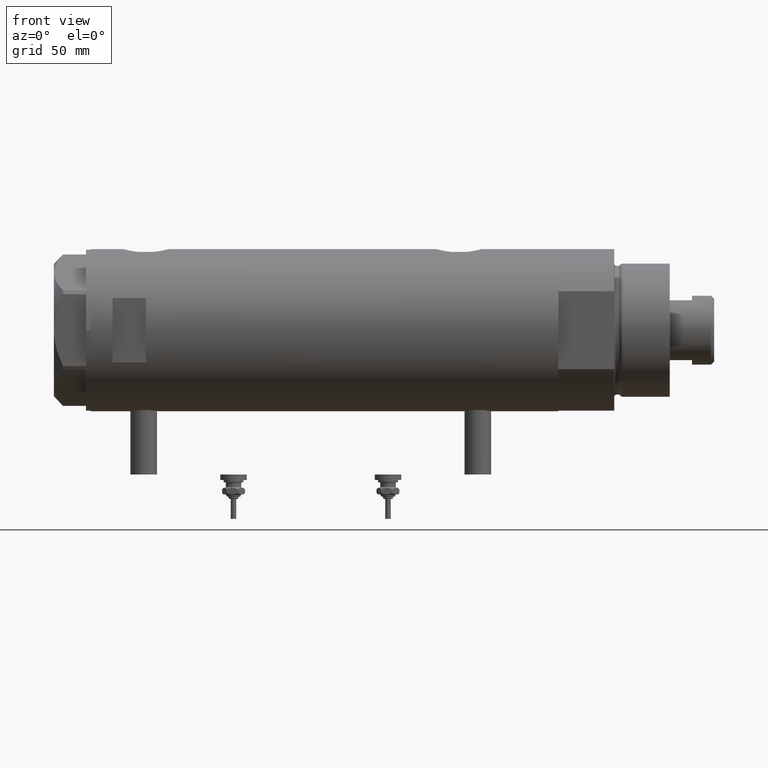
[diagram: clean part render]
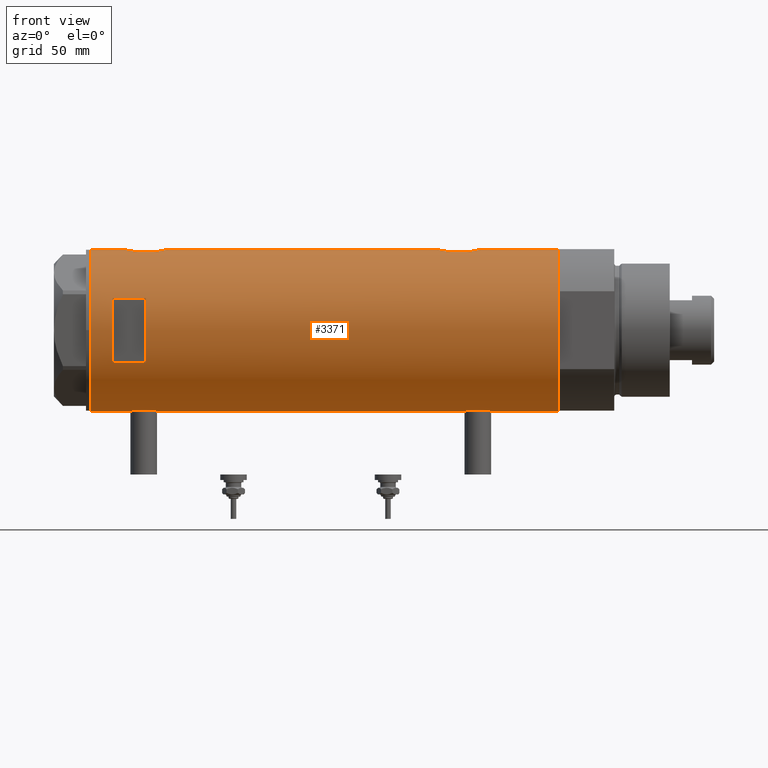
[diagram: same view with one face highlighted and labeled with its STEP entity id]
A machine part, front view. The second image highlights one B-rep face of the part: STEP entity #3371.
In plain terms, the highlighted cylindrical surface (partial cylindrical patch) has radius 36.5 mm, axis along (-1, -0, 0).
Its self-contained STEP definition (entity closure, byte-faithful):
#2 = ORIENTED_EDGE ( 'NONE', *, *, #1111, .T. ) ;
#35 = CARTESIAN_POINT ( 'NONE',  ( -36.47262891311152799, -1.427622242603856506, -63.01175370788300256 ) ) ;
#50 = EDGE_CURVE ( 'NONE', #5502, #5746, #4378, .T. ) ;
#68 = CARTESIAN_POINT ( 'NONE',  ( -35.96087392089863499, -6.250243747806517369, -68.69082509223819955 ) ) ;
#78 = ORIENTED_EDGE ( 'NONE', *, *, #4471, .T. ) ;
#129 = CARTESIAN_POINT ( 'NONE',  ( -36.44454782745417987, -2.020757099930490686, 87.31785864421000554 ) ) ;
#176 = CARTESIAN_POINT ( 'NONE',  ( 36.50000000000000000, 0.000000000000000000, 70.40000000000000568 ) ) ;
#184 = EDGE_CURVE ( 'NONE', #3453, #5552, #455, .T. ) ;
#205 = CARTESIAN_POINT ( 'NONE',  ( 36.50000000000000000, -0.5031001875915696031, 70.40000000000000568 ) ) ;
#221 = VECTOR ( 'NONE', #3556, 1000.000000000000000 ) ;
#236 = CARTESIAN_POINT ( 'NONE',  ( -36.50000000000000000, -0.4136690418839331640, 87.65000000000000568 ) ) ;
#238 = CARTESIAN_POINT ( 'NONE',  ( 35.29999999999999716, -9.282241108697837362, -56.87978495245236843 ) ) ;
#268 = CARTESIAN_POINT ( 'NONE',  ( -36.16125812922425098, -4.962923794285023504, 85.20446085910759848 ) ) ;
#285 = CARTESIAN_POINT ( 'NONE',  ( 36.41918031349423757, -2.473644131148925673, -50.89811654536808305 ) ) ;
#323 = ORIENTED_EDGE ( 'NONE', *, *, #3923, .F. ) ;
#350 = CARTESIAN_POINT ( 'NONE',  ( 35.72583162417570435, -7.484316398521970726, -53.94957356280497862 ) ) ;
#352 = CARTESIAN_POINT ( 'NONE',  ( 36.50000000000002132, -0.4962708696651109141, 90.40000000000001990 ) ) ;
#386 = CARTESIAN_POINT ( 'NONE',  ( -36.44621655743050326, -2.016281777336077052, -75.02982976699117046 ) ) ;
#421 = CARTESIAN_POINT ( 'NONE',  ( 36.48960339336945680, -1.002724032967600598, -70.56224865973496208 ) ) ;
#455 = LINE ( 'NONE', #5513, #1654 ) ;
#460 = DIRECTION ( 'NONE',  ( 0.000000000000000000, 0.000000000000000000, 1.000000000000000000 ) ) ;
#488 = CARTESIAN_POINT ( 'NONE',  ( -35.96794010939611752, -6.209972807992079069, -68.28444451008647320 ) ) ;
#539 = VERTEX_POINT ( 'NONE', #920 ) ;
#544 = CARTESIAN_POINT ( 'NONE',  ( -36.09514898390869320, -5.426114745500165704, -65.97161347053858549 ) ) ;
#551 = CARTESIAN_POINT ( 'NONE',  ( 35.29999999999999716, -9.282241108697832033, 76.67978495245235138 ) ) ;
#553 = CARTESIAN_POINT ( 'NONE',  ( -35.96095902952617251, -6.249754054240901802, 80.98341234579530123 ) ) ;
#575 = CARTESIAN_POINT ( 'NONE',  ( 36.41856252531824367, -2.482507212621164694, 70.70043487153495221 ) ) ;
#576 = DIRECTION ( 'NONE',  ( 0.000000000000000000, 0.000000000000000000, 1.000000000000000000 ) ) ;
#630 = EDGE_CURVE ( 'NONE', #3304, #1897, #3267, .T. ) ;
#633 = DIRECTION ( 'NONE',  ( -0.000000000000000000, -4.625929269271492422E-15, 1.000000000000000000 ) ) ;
#655 = DIRECTION ( 'NONE',  ( 1.000000000000000000, 0.000000000000000000, 0.000000000000000000 ) ) ;
#715 = CARTESIAN_POINT ( 'NONE',  ( -36.09514898390870030, -5.426114745500156822, 84.52838652946140030 ) ) ;
#727 = ORIENTED_EDGE ( 'NONE', *, *, #5586, .T. ) ;
#743 = CARTESIAN_POINT ( 'NONE',  ( 35.72583162417569724, -7.484316398521979607, 87.05042643719500006 ) ) ;
#768 = CARTESIAN_POINT ( 'NONE',  ( 35.79638309643554805, -7.141827709208433461, -53.58298073030452713 ) ) ;
#770 = CARTESIAN_POINT ( 'NONE',  ( 35.79638309643554805, -7.141827709208433461, 87.41701926969550129 ) ) ;
#772 = CARTESIAN_POINT ( 'NONE',  ( 35.72742963626382107, -7.471989379615396665, -67.25062260412778414 ) ) ;
#804 = CARTESIAN_POINT ( 'NONE',  ( 36.44881677724179525, -1.995085670027224367, -70.41180345369464533 ) ) ;
#805 = CARTESIAN_POINT ( 'NONE',  ( 0.000000000000000000, 0.000000000000000000, 95.40000000000001990 ) ) ;
#836 = CARTESIAN_POINT ( 'NONE',  ( 36.09633718678916381, -5.417295330713082002, -52.19085132654786463 ) ) ;
#889 = LINE ( 'NONE', #5537, #2552 ) ;
#920 = CARTESIAN_POINT ( 'NONE',  ( -36.50000000000000000, 4.469960816887837641E-15, -105.4000000000000057 ) ) ;
#937 = CARTESIAN_POINT ( 'NONE',  ( -36.21356728133256553, -4.566014386638764577, -64.82737339235256968 ) ) ;
#964 = LINE ( 'NONE', #990, #3334 ) ;
#986 = CARTESIAN_POINT ( 'NONE',  ( -35.96095902952617251, -6.249754054240902690, -69.51658765420471298 ) ) ;
#990 = CARTESIAN_POINT ( 'NONE',  ( 35.29999999999999716, -9.282241108697835585, -105.4000000000000057 ) ) ;
#1003 = CARTESIAN_POINT ( 'NONE',  ( -36.26616882068469749, -4.135065845178862887, 86.10415055940092088 ) ) ;
#1006 = CIRCLE ( 'NONE', #5533, 36.50000000000000000 ) ;
#1026 = CARTESIAN_POINT ( 'NONE',  ( 35.29999999999999716, -9.282241108697835585, -105.4000000000000057 ) ) ;
#1029 = EDGE_CURVE ( 'NONE', #2015, #5726, #1518, .T. ) ;
#1030 = CARTESIAN_POINT ( 'NONE',  ( -35.96087392089863499, -6.250243747806518257, 81.80917490776184309 ) ) ;
#1103 = EDGE_CURVE ( 'NONE', #2166, #4908, #2647, .T. ) ;
#1111 = EDGE_CURVE ( 'NONE', #1992, #4106, #4606, .T. ) ;
#1113 = CARTESIAN_POINT ( 'NONE',  ( 0.000000000000000000, 0.000000000000000000, -105.4000000000000057 ) ) ;
#1122 = FACE_OUTER_BOUND ( 'NONE', #3845, .T. ) ;
#1146 = ORIENTED_EDGE ( 'NONE', *, *, #630, .F. ) ;
#1168 = CARTESIAN_POINT ( 'NONE',  ( 35.52320828895290816, -8.411622242316138198, -66.09772865944611908 ) ) ;
#1171 = CARTESIAN_POINT ( 'NONE',  ( -36.39621039793029666, -2.776267550998800182, 87.01430753106777161 ) ) ;
#1198 = CARTESIAN_POINT ( 'NONE',  ( 36.18674680775578167, -4.776679548204628034, 89.18892316931248843 ) ) ;
#1201 = CARTESIAN_POINT ( 'NONE',  ( -36.19666146462961365, -4.704890678739095833, -73.23429859510785889 ) ) ;
#1205 = CARTESIAN_POINT ( 'NONE',  ( -36.26692673949091983, -4.128477002029504739, 76.69000012567835256 ) ) ;
#1236 = CARTESIAN_POINT ( 'NONE',  ( 36.12792682573229541, -5.214735277442327011, -69.14693117988701943 ) ) ;
#1263 = CARTESIAN_POINT ( 'NONE',  ( 36.44931971524464842, -1.985988150549292897, -50.78633139468235669 ) ) ;
#1267 = CARTESIAN_POINT ( 'NONE',  ( 35.79656810172927806, -7.133411935499470502, -67.61254878557679149 ) ) ;
#1273 = CARTESIAN_POINT ( 'NONE',  ( 36.50000000000000000, 0.000000000000000000, -70.59999999999999432 ) ) ;
#1294 = ORIENTED_EDGE ( 'NONE', *, *, #1103, .F. ) ;
#1298 = CARTESIAN_POINT ( 'NONE',  ( 35.93373217836898448, -6.415110096330618461, 88.08704266355093182 ) ) ;
#1303 = CARTESIAN_POINT ( 'NONE',  ( 36.41856252531823657, -2.482507212621166026, -70.29956512846504779 ) ) ;
#1320 = VECTOR ( 'NONE', #4612, 1000.000000000000000 ) ;
#1329 = CARTESIAN_POINT ( 'NONE',  ( 36.50000000000000000, 4.344614706140975428E-19, 90.39999999999999147 ) ) ;
#1338 = CARTESIAN_POINT ( 'NONE',  ( 36.50000000000000000, -0.5031001875915691590, -70.59999999999999432 ) ) ;
#1342 = EDGE_CURVE ( 'NONE', #1897, #4206, #2364, .T. ) ;
#1379 = EDGE_CURVE ( 'NONE', #4206, #2959, #4695, .T. ) ;
#1382 = CARTESIAN_POINT ( 'NONE',  ( -36.46614432713122511, -1.622933015999963535, 75.35033402613152020 ) ) ;
#1399 = CARTESIAN_POINT ( 'NONE',  ( -36.16125812922422966, -4.962923794285019952, -65.29553914089238731 ) ) ;
#1408 = EDGE_CURVE ( 'NONE', #5552, #4106, #4571, .T. ) ;
#1429 = CARTESIAN_POINT ( 'NONE',  ( -36.50000000000000000, -5.849986204104554638E-16, -62.85000000000000142 ) ) ;
#1452 = CARTESIAN_POINT ( 'NONE',  ( -36.02782481185206365, -5.852531070448510953, -66.89722991047813139 ) ) ;
#1474 = CARTESIAN_POINT ( 'NONE',  ( -36.46417279006303858, -1.628689148039111245, -63.06246061306185169 ) ) ;
#1478 = DIRECTION ( 'NONE',  ( 0.000000000000000000, 0.000000000000000000, 1.000000000000000000 ) ) ;
#1489 = CARTESIAN_POINT ( 'NONE',  ( -36.01675918113430441, -5.920026275461276910, 79.38560443482106166 ) ) ;
#1517 = CARTESIAN_POINT ( 'NONE',  ( -36.14410773716529235, -5.085921866747742826, 85.03835878420473193 ) ) ;
#1518 = B_SPLINE_CURVE_WITH_KNOTS ( 'NONE', 3,
 ( #5741, #1624, #1168, #3029, #772, #1267, #3952, #3119, #1689, #1236, #3092, #5013, #4013, #1303, #804, #421, #1338, #3543 ),
 .UNSPECIFIED., .F., .F.,
 ( 4, 2, 2, 2, 2, 2, 2, 2, 4 ),
 ( -0.01189883390545605317, -0.008924125429092051587, -0.008180448310001049023, -0.007436771190910045591, -0.005949416952728037861, -0.004462062714546030130, -0.002974708476364020665, -0.001487354238182012067, -1.734723475976807094E-18 ),
 .UNSPECIFIED. ) ;
#1605 = CARTESIAN_POINT ( 'NONE',  ( 0.000000000000000000, 0.000000000000000000, 80.40000000000017621 ) ) ;
#1624 = CARTESIAN_POINT ( 'NONE',  ( 35.39794035667549821, -8.909777761736844326, -65.24954159089455175 ) ) ;
#1627 = CARTESIAN_POINT ( 'NONE',  ( -36.02782481185206365, -5.852531070448502959, 83.60277008952189703 ) ) ;
#1654 = VECTOR ( 'NONE', #3725, 1000.000000000000000 ) ;
#1656 = CARTESIAN_POINT ( 'NONE',  ( -36.36656776002988067, -3.137002187003158582, 86.82136409273630306 ) ) ;
#1683 = CARTESIAN_POINT ( 'NONE',  ( 36.12724769814494863, -5.207618053557752091, -52.05935879511539355 ) ) ;
#1689 = CARTESIAN_POINT ( 'NONE',  ( 36.00068527486600800, -6.030855700422084631, -68.59201327127354375 ) ) ;
#1702 = EDGE_CURVE ( 'NONE', #539, #2166, #5813, .T. ) ;
#1749 = CARTESIAN_POINT ( 'NONE',  ( 36.44931971524466263, -1.985988150549296671, 90.21366860531762200 ) ) ;
#1753 = CARTESIAN_POINT ( 'NONE',  ( -36.50000000000000000, -0.4082012689449570075, -75.35000000000000853 ) ) ;
#1772 = CARTESIAN_POINT ( 'NONE',  ( -36.50000000000000000, -5.849986204104554638E-16, -62.85000000000000142 ) ) ;
#1783 = CARTESIAN_POINT ( 'NONE',  ( 35.39807338191550912, -8.909271871950332766, 85.05080382732786859 ) ) ;
#1823 = CARTESIAN_POINT ( 'NONE',  ( -36.49297138689433950, -0.8222528563518539668, -62.89066887946567874 ) ) ;
#1882 = CARTESIAN_POINT ( 'NONE',  ( -36.26616882068470460, -4.135065845178866439, -64.39584944059907912 ) ) ;
#1896 = CARTESIAN_POINT ( 'NONE',  ( -36.50000000000000000, 4.469960493350315609E-15, 75.14999999999999147 ) ) ;
#1897 = VERTEX_POINT ( 'NONE', #2442 ) ;
#1914 = CARTESIAN_POINT ( 'NONE',  ( -36.02823773219769521, -5.849994928883553769, -71.30955101485646708 ) ) ;
#1937 = CARTESIAN_POINT ( 'NONE',  ( 36.50000000000000000, 0.000000000000000000, -105.4000000000000057 ) ) ;
#1944 = CARTESIAN_POINT ( 'NONE',  ( 35.52320828895290816, -8.411622242316136422, 74.90227134055386671 ) ) ;
#1976 = CARTESIAN_POINT ( 'NONE',  ( -36.47262891311152089, -1.427622242603850955, 87.48824629211701165 ) ) ;
#1992 = VERTEX_POINT ( 'NONE', #1329 ) ;
#1993 = VERTEX_POINT ( 'NONE', #2327 ) ;
#2015 = VERTEX_POINT ( 'NONE', #5914 ) ;
#2019 = EDGE_CURVE ( 'NONE', #5502, #2485, #889, .T. ) ;
#2091 = ORIENTED_EDGE ( 'NONE', *, *, #4225, .T. ) ;
#2116 = CARTESIAN_POINT ( 'NONE',  ( -36.35061318816141807, -3.303361544904982239, 76.09035958056981030 ) ) ;
#2133 = CARTESIAN_POINT ( 'NONE',  ( 36.48988302519020976, -0.9927202255321156965, -50.63673010588698986 ) ) ;
#2134 = DIRECTION ( 'NONE',  ( 0.000000000000000000, 0.000000000000000000, 1.000000000000000000 ) ) ;
#2138 = CARTESIAN_POINT ( 'NONE',  ( -36.16096637594731078, -4.968588355849257177, -72.91334492817756541 ) ) ;
#2166 = VERTEX_POINT ( 'NONE', #5391 ) ;
#2169 = CARTESIAN_POINT ( 'NONE',  ( 36.41918031349424467, -2.473644131148923009, 90.10188345463190274 ) ) ;
#2201 = CARTESIAN_POINT ( 'NONE',  ( 36.00092304812866928, -6.029438422680415854, 88.39308155573650083 ) ) ;
#2233 = CARTESIAN_POINT ( 'NONE',  ( -36.35061318816140385, -3.303361544904981795, -74.40964041943017548 ) ) ;
#2268 = CARTESIAN_POINT ( 'NONE',  ( 35.29999999999999716, -9.282241108697837362, -56.87978495245236843 ) ) ;
#2274 = CARTESIAN_POINT ( 'NONE',  ( -36.30107494031872761, -3.820993528321232624, -64.13693846463692694 ) ) ;
#2327 = CARTESIAN_POINT ( 'NONE',  ( -36.50000000000000000, 4.469960493350315609E-15, 75.14999999999999147 ) ) ;
#2337 = CARTESIAN_POINT ( 'NONE',  ( -35.99659093586380010, -6.041447834568798747, -67.48577587985177217 ) ) ;
#2338 = B_SPLINE_CURVE_WITH_KNOTS ( 'NONE', 3,
 ( #5867, #352, #3597, #1749, #2169, #5416, #4457, #5859, #1198, #3153, #2698, #2201, #1298, #770, #743, #4913, #1783, #4882 ),
 .UNSPECIFIED., .F., .F.,
 ( 4, 2, 2, 2, 2, 2, 2, 2, 4 ),
 ( 0.01190956515753145012, 0.01339852714138288839, 0.01488748912523432666, 0.01637645110908576493, 0.01712093210101148233, 0.01786541309293720320, 0.01935437507678866575, 0.02084333706064012831, 0.02382126102834302220 ),
 .UNSPECIFIED. ) ;
#2364 = CIRCLE ( 'NONE', #4666, 36.50000000000000000 ) ;
#2368 = CARTESIAN_POINT ( 'NONE',  ( -36.06605150775667568, -5.613853192123348101, -71.87765688272543230 ) ) ;
#2408 = CARTESIAN_POINT ( 'NONE',  ( -35.99659093586380010, -6.041447834568794306, 83.01422412014827046 ) ) ;
#2412 = ORIENTED_EDGE ( 'NONE', *, *, #184, .F. ) ;
#2426 = CARTESIAN_POINT ( 'NONE',  ( 14.49137674618942562, -33.50000000000000000, -105.4000000000000057 ) ) ;
#2427 = LINE ( 'NONE', #1026, #5257 ) ;
#2431 = CARTESIAN_POINT ( 'NONE',  ( -36.44621655743048905, -2.016281777336075276, 75.47017023300884375 ) ) ;
#2442 = CARTESIAN_POINT ( 'NONE',  ( -14.49137674618942739, -33.50000000000000000, 80.40000000000003411 ) ) ;
#2485 = VERTEX_POINT ( 'NONE', #5865 ) ;
#2491 = DIRECTION ( 'NONE',  ( 1.776356839400250465E-15, 1.000000000000000000, 4.562560375171875891E-15 ) ) ;
#2497 = VERTEX_POINT ( 'NONE', #4082 ) ;
#2511 = DIRECTION ( 'NONE',  ( 0.000000000000000000, 0.000000000000000000, 1.000000000000000000 ) ) ;
#2514 = CARTESIAN_POINT ( 'NONE',  ( 35.72742963626382107, -7.471989379615396665, 73.74937739587224428 ) ) ;
#2521 = CYLINDRICAL_SURFACE ( 'NONE', #4364, 36.50000000000000000 ) ;
#2525 = ORIENTED_EDGE ( 'NONE', *, *, #50, .F. ) ;
#2552 = VECTOR ( 'NONE', #576, 1000.000000000000000 ) ;
#2579 = CARTESIAN_POINT ( 'NONE',  ( -36.30176144752230982, -3.814344296723637839, 76.43198298049743755 ) ) ;
#2606 = CARTESIAN_POINT ( 'NONE',  ( -36.39558535855672972, -2.764807686268001774, -74.70894118545611207 ) ) ;
#2608 = CARTESIAN_POINT ( 'NONE',  ( -35.99695583620881223, -6.039273428153904888, 79.77775555012243558 ) ) ;
#2647 = B_SPLINE_CURVE_WITH_KNOTS ( 'NONE', 3,
 ( #3156, #1753, #2703, #3636, #386, #4563, #2606, #4529, #2233, #4076, #5458, #1201, #2138, #5107, #2368, #1914, #4205, #5925, #5491, #4632, #986, #68, #488, #3757, #2337, #2770, #1452, #5080, #544, #3279, #1399, #2855, #937, #1882, #2274, #5550, #4149, #3253, #4171, #1474, #35, #1823, #4687, #1429 ),
 .UNSPECIFIED., .F., .F.,
 ( 4, 2, 2, 2, 2, 2, 2, 2, 2, 2, 2, 2, 2, 2, 2, 2, 2, 2, 2, 2, 2, 4 ),
 ( 0.01957644481942642095, 0.02079966591703045695, 0.02202288701463449294, 0.02263449756343650573, 0.02324610811223851506, 0.02446932920984253371, 0.02569255030744655582, 0.02691577140505057447, 0.02752738195385256298, 0.02813899250265455843, 0.02936221360025857707, 0.03058543469786260266, 0.03119704524666461198, 0.03180865579546662825, 0.03303187689307068159, 0.03364348744187269785, 0.03425509799067470718, 0.03547831908827873970, 0.03670154018588277223, 0.03731315073468478849, 0.03792476128348680475, 0.03914798238109083034 ),
 .UNSPECIFIED. ) ;
#2679 = EDGE_CURVE ( 'NONE', #1992, #5518, #2338, .T. ) ;
#2696 = CARTESIAN_POINT ( 'NONE',  ( 36.00092304812866928, -6.029438422680417631, -52.60691844426350627 ) ) ;
#2698 = CARTESIAN_POINT ( 'NONE',  ( 36.09633718678917802, -5.417295330713079338, 88.80914867345211405 ) ) ;
#2703 = CARTESIAN_POINT ( 'NONE',  ( -36.49315367594275017, -0.8144497809045466719, -75.31039785554756349 ) ) ;
#2770 = CARTESIAN_POINT ( 'NONE',  ( -36.01639592019627401, -5.922235714778421034, -67.09203197573087607 ) ) ;
#2780 = CARTESIAN_POINT ( 'NONE',  ( -36.50000000000000000, 4.469960816887837641E-15, -105.4000000000000057 ) ) ;
#2855 = CARTESIAN_POINT ( 'NONE',  ( -36.19599073318029525, -4.702920041824404151, -64.97846168323422944 ) ) ;
#2910 = CARTESIAN_POINT ( 'NONE',  ( 35.39794035667547689, -8.909777761736840773, 75.75045840910546247 ) ) ;
#2915 = CARTESIAN_POINT ( 'NONE',  ( -36.06605150775666857, -5.613853192123346325, 78.62234311727455349 ) ) ;
#2937 = CIRCLE ( 'NONE', #3802, 36.50000000000000000 ) ;
#2959 = VERTEX_POINT ( 'NONE', #5027 ) ;
#2975 = CARTESIAN_POINT ( 'NONE',  ( 36.12792682573227410, -5.214735277442327899, 71.85306882011298057 ) ) ;
#2999 = ORIENTED_EDGE ( 'NONE', *, *, #2019, .T. ) ;
#3003 = ORIENTED_EDGE ( 'NONE', *, *, #5602, .F. ) ;
#3029 = CARTESIAN_POINT ( 'NONE',  ( 35.69273631926343171, -7.635692914629146344, -67.06200195651491924 ) ) ;
#3032 = CARTESIAN_POINT ( 'NONE',  ( -36.21356728133256553, -4.566014386638763689, 85.67262660764747295 ) ) ;
#3081 = EDGE_CURVE ( 'NONE', #2959, #3304, #2937, .T. ) ;
#3087 = CARTESIAN_POINT ( 'NONE',  ( 36.18674680775578167, -4.776679548204626258, -51.81107683068754000 ) ) ;
#3092 = CARTESIAN_POINT ( 'NONE',  ( 36.18850502651835654, -4.779575967213801846, -69.39779152890153568 ) ) ;
#3103 = CARTESIAN_POINT ( 'NONE',  ( -36.50000000000000000, 4.469960816887837641E-15, -105.4000000000000057 ) ) ;
#3119 = CARTESIAN_POINT ( 'NONE',  ( 35.93363298843767240, -6.415574104180961079, -68.28651472888893181 ) ) ;
#3151 = CARTESIAN_POINT ( 'NONE',  ( 36.50000000000000000, 4.344609657431182014E-19, -50.60000000000000853 ) ) ;
#3153 = CARTESIAN_POINT ( 'NONE',  ( 36.12724769814494152, -5.207618053557752980, 88.94064120488462777 ) ) ;
#3156 = CARTESIAN_POINT ( 'NONE',  ( -36.50000000000000000, 4.469960493350315609E-15, -75.35000000000000853 ) ) ;
#3192 = B_SPLINE_CURVE_WITH_KNOTS ( 'NONE', 3,
 ( #551, #2910, #1944, #4347, #2514, #4243, #3816, #5664, #3787, #2975, #3763, #5138, #4719, #575, #5252, #5638, #205, #176 ),
 .UNSPECIFIED., .F., .F.,
 ( 4, 2, 2, 2, 2, 2, 2, 2, 4 ),
 ( -0.01189883390545605317, -0.008924125429092049852, -0.008180448310001047288, -0.007436771190910044724, -0.005949416952728036993, -0.004462062714546029263, -0.002974708476364020665, -0.001487354238182010333, -1.734723475976807094E-18 ),
 .UNSPECIFIED. ) ;
#3253 = CARTESIAN_POINT ( 'NONE',  ( -36.43335814606992784, -2.212659578761321022, -63.25123600830491455 ) ) ;
#3267 = LINE ( 'NONE', #5094, #5221 ) ;
#3279 = CARTESIAN_POINT ( 'NONE',  ( -36.14410773716529235, -5.085921866747752595, -65.46164121579531070 ) ) ;
#3304 = VERTEX_POINT ( 'NONE', #5466 ) ;
#3305 = CARTESIAN_POINT ( 'NONE',  ( 14.49137674618942739, -33.50000000000000000, 80.40000000000003411 ) ) ;
#3334 = VECTOR ( 'NONE', #4690, 1000.000000000000000 ) ;
#3345 = CARTESIAN_POINT ( 'NONE',  ( -35.98855750525640929, -6.088954600884529000, 79.97569773849832586 ) ) ;
#3371 = ADVANCED_FACE ( 'NONE', ( #1122, #4804 ), #2521, .T. ) ;
#3372 = CARTESIAN_POINT ( 'NONE',  ( -36.36635911126388976, -3.125815113635436404, 75.98394399592095283 ) ) ;
#3414 = AXIS2_PLACEMENT_3D ( 'NONE', #5674, #5267, #5237 ) ;
#3426 = VECTOR ( 'NONE', #2134, 1000.000000000000000 ) ;
#3453 = VERTEX_POINT ( 'NONE', #4176 ) ;
#3509 = CARTESIAN_POINT ( 'NONE',  ( -36.49297138689433240, -0.8222528563518511913, 87.60933112053437810 ) ) ;
#3537 = CARTESIAN_POINT ( 'NONE',  ( 36.34247810649306132, -3.420510937483960845, -51.19013481598272364 ) ) ;
#3543 = CARTESIAN_POINT ( 'NONE',  ( 36.50000000000000000, 0.000000000000000000, -70.59999999999999432 ) ) ;
#3556 = DIRECTION ( 'NONE',  ( 0.000000000000000000, 0.000000000000000000, 1.000000000000000000 ) ) ;
#3597 = CARTESIAN_POINT ( 'NONE',  ( 36.48988302519020266, -0.9927202255321175839, 90.36326989411300303 ) ) ;
#3636 = CARTESIAN_POINT ( 'NONE',  ( -36.46614432713123222, -1.622933015999965090, -75.14966597386846558 ) ) ;
#3638 = CARTESIAN_POINT ( 'NONE',  ( -36.50000000000000000, -0.4082012689449558418, 75.15000000000001990 ) ) ;
#3686 = EDGE_LOOP ( 'NONE', ( #5152, #1146, #5628, #5768 ) ) ;
#3725 = DIRECTION ( 'NONE',  ( 0.000000000000000000, 0.000000000000000000, 1.000000000000000000 ) ) ;
#3740 = ORIENTED_EDGE ( 'NONE', *, *, #1702, .F. ) ;
#3757 = CARTESIAN_POINT ( 'NONE',  ( -35.98821803976956346, -6.090959022952116442, -67.68426116850582730 ) ) ;
#3763 = CARTESIAN_POINT ( 'NONE',  ( 36.18850502651836365, -4.779575967213802734, 71.60220847109845010 ) ) ;
#3787 = CARTESIAN_POINT ( 'NONE',  ( 36.00068527486601511, -6.030855700422084631, 72.40798672872645625 ) ) ;
#3792 = CARTESIAN_POINT ( 'NONE',  ( -35.98821803976956346, -6.090959022952118218, 82.81573883149420112 ) ) ;
#3802 = AXIS2_PLACEMENT_3D ( 'NONE', #805, #5392, #5861 ) ;
#3816 = CARTESIAN_POINT ( 'NONE',  ( 35.83108131285855791, -6.958268797611344425, 73.21369216627172705 ) ) ;
#3823 = CARTESIAN_POINT ( 'NONE',  ( -36.19599073318030236, -4.702920041824403263, 85.52153831676578477 ) ) ;
#3839 = B_SPLINE_CURVE_WITH_KNOTS ( 'NONE', 3,
 ( #1896, #3638, #5562, #1382, #2431, #5302, #4298, #3372, #2116, #2579, #1205, #4701, #4856, #4264, #2915, #5172, #1489, #2608, #3345, #5198, #553, #1030, #5144, #3792, #2408, #5745, #1627, #4406, #715, #1517, #268, #3823, #3032, #1003, #3955, #1656, #1171, #5769, #129, #4245, #1976, #3509, #236, #5611 ),
 .UNSPECIFIED., .F., .F.,
 ( 4, 2, 2, 2, 2, 2, 2, 2, 2, 2, 2, 2, 2, 2, 2, 2, 2, 2, 2, 2, 2, 4 ),
 ( 0.01957644481942642095, 0.02079966591703042919, 0.02202288701463443396, 0.02263449756343643635, 0.02324610811223844220, 0.02446932920984244697, 0.02569255030744645174, 0.02691577140505045651, 0.02752738195385245890, 0.02813899250265446475, 0.02936221360025851115, 0.03058543469786256103, 0.03119704524666458423, 0.03180865579546660743, 0.03303187689307068853, 0.03364348744187271173, 0.03425509799067473493, 0.03547831908827876746, 0.03670154018588278610, 0.03731315073468480237, 0.03792476128348681169, 0.03914798238109083728 ),
 .UNSPECIFIED. ) ;
#3845 = EDGE_LOOP ( 'NONE', ( #3740, #4775, #78, #5529, #2091, #2525, #2999, #3003, #727, #5657, #2, #5880, #2412, #323, #5648, #1294 ) ) ;
#3889 = VECTOR ( 'NONE', #4242, 1000.000000000000000 ) ;
#3923 = EDGE_CURVE ( 'NONE', #1993, #3453, #3839, .T. ) ;
#3952 = CARTESIAN_POINT ( 'NONE',  ( 35.83108131285855791, -6.958268797611344425, -67.78630783372827295 ) ) ;
#3955 = CARTESIAN_POINT ( 'NONE',  ( -36.30107494031871340, -3.820993528321230848, 86.36306153536308727 ) ) ;
#3972 = CARTESIAN_POINT ( 'NONE',  ( 35.93373217836897737, -6.415110096330618461, -52.91295733644908239 ) ) ;
#4013 = CARTESIAN_POINT ( 'NONE',  ( 36.34184199234172041, -3.427106516421252635, -70.00740913680033373 ) ) ;
#4076 = CARTESIAN_POINT ( 'NONE',  ( -36.30176144752230982, -3.814344296723638728, -74.06801701950256245 ) ) ;
#4082 = CARTESIAN_POINT ( 'NONE',  ( 35.29999999999999716, -9.282241108697832033, 76.67978495245235138 ) ) ;
#4106 = VERTEX_POINT ( 'NONE', #4717 ) ;
#4149 = CARTESIAN_POINT ( 'NONE',  ( -36.39621039793028956, -2.776267550998802847, -63.48569246893222129 ) ) ;
#4171 = CARTESIAN_POINT ( 'NONE',  ( -36.44454782745417276, -2.020757099930496903, -63.18214135579003710 ) ) ;
#4176 = CARTESIAN_POINT ( 'NONE',  ( -36.50000000000000000, 1.407447864834978200E-15, 87.65000000000000568 ) ) ;
#4205 = CARTESIAN_POINT ( 'NONE',  ( -36.01675918113429020, -5.920026275461276910, -71.11439556517890992 ) ) ;
#4206 = VERTEX_POINT ( 'NONE', #3305 ) ;
#4225 = EDGE_CURVE ( 'NONE', #2015, #5746, #964, .T. ) ;
#4226 = EDGE_CURVE ( 'NONE', #539, #4271, #1006, .T. ) ;
#4242 = DIRECTION ( 'NONE',  ( 0.000000000000000000, 0.000000000000000000, 1.000000000000000000 ) ) ;
#4243 = CARTESIAN_POINT ( 'NONE',  ( 35.79656810172927806, -7.133411935499470502, 73.38745121442323693 ) ) ;
#4245 = CARTESIAN_POINT ( 'NONE',  ( -36.46417279006303858, -1.628689148039105028, 87.43753938693819805 ) ) ;
#4264 = CARTESIAN_POINT ( 'NONE',  ( -36.09582946723050156, -5.421573071064194949, 78.26391721629516951 ) ) ;
#4271 = VERTEX_POINT ( 'NONE', #5216 ) ;
#4298 = CARTESIAN_POINT ( 'NONE',  ( -36.39558535855675103, -2.764807686268001330, 75.79105881454391636 ) ) ;
#4347 = CARTESIAN_POINT ( 'NONE',  ( 35.69273631926343171, -7.635692914629146344, 73.93799804348510918 ) ) ;
#4364 = AXIS2_PLACEMENT_3D ( 'NONE', #1113, #2511, #655 ) ;
#4378 = B_SPLINE_CURVE_WITH_KNOTS ( 'NONE', 3,
 ( #3151, #4427, #2133, #1263, #285, #3537, #5364, #4979, #3087, #1683, #836, #2696, #3972, #768, #350, #4937, #4559, #2268 ),
 .UNSPECIFIED., .F., .F.,
 ( 4, 2, 2, 2, 2, 2, 2, 2, 4 ),
 ( 0.01190956515753145185, 0.01339852714138290921, 0.01488748912523436482, 0.01637645110908582391, 0.01712093210101154825, 0.01786541309293727259, 0.01935437507678870739, 0.02084333706064014219, 0.02382126102834301873 ),
 .UNSPECIFIED. ) ;
#4406 = CARTESIAN_POINT ( 'NONE',  ( -36.06543684817881257, -5.617774235967358365, 84.16954447971703246 ) ) ;
#4427 = CARTESIAN_POINT ( 'NONE',  ( 36.50000000000000000, -0.4962708696651109141, -50.60000000000000853 ) ) ;
#4457 = CARTESIAN_POINT ( 'NONE',  ( 36.29582892817134621, -3.881628320031161650, 89.62934434534990658 ) ) ;
#4471 = EDGE_CURVE ( 'NONE', #4271, #5726, #5415, .T. ) ;
#4529 = CARTESIAN_POINT ( 'NONE',  ( -36.36635911126387555, -3.125815113635437292, -74.51605600407904717 ) ) ;
#4559 = CARTESIAN_POINT ( 'NONE',  ( 35.39807338191550912, -8.909271871950334543, -55.94919617267213852 ) ) ;
#4563 = CARTESIAN_POINT ( 'NONE',  ( -36.40915499150419521, -2.580495338846545472, -74.79605013355477183 ) ) ;
#4571 = CIRCLE ( 'NONE', #3414, 36.50000000000000000 ) ;
#4606 = LINE ( 'NONE', #1937, #5517 ) ;
#4612 = DIRECTION ( 'NONE',  ( 0.000000000000000000, 0.000000000000000000, 1.000000000000000000 ) ) ;
#4632 = CARTESIAN_POINT ( 'NONE',  ( -35.96816095843705341, -6.208699946936202529, -69.92496377127788776 ) ) ;
#4642 = DIRECTION ( 'NONE',  ( -0.000000000000000000, -0.000000000000000000, -1.000000000000000000 ) ) ;
#4666 = AXIS2_PLACEMENT_3D ( 'NONE', #1605, #633, #2491 ) ;
#4687 = CARTESIAN_POINT ( 'NONE',  ( -36.50000000000000000, -0.4136690418839316097, -62.85000000000000142 ) ) ;
#4690 = DIRECTION ( 'NONE',  ( 0.000000000000000000, 0.000000000000000000, 1.000000000000000000 ) ) ;
#4695 = LINE ( 'NONE', #2426, #3889 ) ;
#4696 = DIRECTION ( 'NONE',  ( 0.000000000000000000, 0.000000000000000000, 1.000000000000000000 ) ) ;
#4701 = CARTESIAN_POINT ( 'NONE',  ( -36.19666146462961365, -4.704890678739094945, 77.26570140489216953 ) ) ;
#4717 = CARTESIAN_POINT ( 'NONE',  ( 36.50000000000000000, 0.000000000000000000, 105.4000000000000057 ) ) ;
#4719 = CARTESIAN_POINT ( 'NONE',  ( 36.34184199234172041, -3.427106516421252635, 70.99259086319966627 ) ) ;
#4775 = ORIENTED_EDGE ( 'NONE', *, *, #4226, .T. ) ;
#4804 = FACE_BOUND ( 'NONE', #3686, .T. ) ;
#4856 = CARTESIAN_POINT ( 'NONE',  ( -36.16096637594733210, -4.968588355849259841, 77.58665507182242038 ) ) ;
#4882 = CARTESIAN_POINT ( 'NONE',  ( 35.29999999999999716, -9.282241108697837362, 84.12021504754763157 ) ) ;
#4908 = VERTEX_POINT ( 'NONE', #1772 ) ;
#4913 = CARTESIAN_POINT ( 'NONE',  ( 35.52323553852026805, -8.411295122831251803, 85.89752392951088211 ) ) ;
#4937 = CARTESIAN_POINT ( 'NONE',  ( 35.52323553852026095, -8.411295122831242921, -55.10247607048913210 ) ) ;
#4979 = CARTESIAN_POINT ( 'NONE',  ( 36.21540437201188922, -4.554727782332259167, -51.69402370911375755 ) ) ;
#5013 = CARTESIAN_POINT ( 'NONE',  ( 36.29527920868844149, -3.886508670267136090, -69.82716275830863140 ) ) ;
#5023 = CARTESIAN_POINT ( 'NONE',  ( -36.50000000000000000, 4.469960816887837641E-15, 105.4000000000000057 ) ) ;
#5027 = CARTESIAN_POINT ( 'NONE',  ( 14.49137674618942739, -33.50000000000000000, 95.40000000000001990 ) ) ;
#5056 = CARTESIAN_POINT ( 'NONE',  ( 36.50000000000000000, 4.344609657431182014E-19, -50.60000000000000853 ) ) ;
#5080 = CARTESIAN_POINT ( 'NONE',  ( -36.06543684817881257, -5.617774235967366359, -66.33045552028299596 ) ) ;
#5088 = CARTESIAN_POINT ( 'NONE',  ( 35.29999999999999716, -9.282241108697837362, 84.12021504754763157 ) ) ;
#5094 = CARTESIAN_POINT ( 'NONE',  ( -14.49137674618942562, -33.50000000000000000, -105.4000000000000057 ) ) ;
#5107 = CARTESIAN_POINT ( 'NONE',  ( -36.09582946723050867, -5.421573071064194060, -72.23608278370490154 ) ) ;
#5110 = DIRECTION ( 'NONE',  ( 1.000000000000000000, 0.000000000000000000, 0.000000000000000000 ) ) ;
#5138 = CARTESIAN_POINT ( 'NONE',  ( 36.29527920868845570, -3.886508670267136978, 71.17283724169138281 ) ) ;
#5144 = CARTESIAN_POINT ( 'NONE',  ( -35.96794010939611752, -6.209972807992079957, 82.21555548991356943 ) ) ;
#5152 = ORIENTED_EDGE ( 'NONE', *, *, #1342, .F. ) ;
#5172 = CARTESIAN_POINT ( 'NONE',  ( -36.02823773219769521, -5.849994928883552880, 79.19044898514358977 ) ) ;
#5198 = CARTESIAN_POINT ( 'NONE',  ( -35.96816095843706051, -6.208699946936200753, 80.57503622872214066 ) ) ;
#5216 = CARTESIAN_POINT ( 'NONE',  ( 36.50000000000000000, 0.000000000000000000, -105.4000000000000057 ) ) ;
#5221 = VECTOR ( 'NONE', #4642, 1000.000000000000000 ) ;
#5237 = DIRECTION ( 'NONE',  ( 1.000000000000000000, 0.000000000000000000, 0.000000000000000000 ) ) ;
#5252 = CARTESIAN_POINT ( 'NONE',  ( 36.44881677724178815, -1.995085670027225255, 70.58819654630536888 ) ) ;
#5257 = VECTOR ( 'NONE', #4696, 1000.000000000000000 ) ;
#5267 = DIRECTION ( 'NONE',  ( 0.000000000000000000, 0.000000000000000000, 1.000000000000000000 ) ) ;
#5302 = CARTESIAN_POINT ( 'NONE',  ( -36.40915499150420231, -2.580495338846545472, 75.70394986644525659 ) ) ;
#5364 = CARTESIAN_POINT ( 'NONE',  ( 36.29582892817134621, -3.881628320031160317, -51.37065565465011474 ) ) ;
#5391 = CARTESIAN_POINT ( 'NONE',  ( -36.50000000000000000, 4.469960493350315609E-15, -75.35000000000000853 ) ) ;
#5392 = DIRECTION ( 'NONE',  ( -0.000000000000000000, 0.000000000000000000, -1.000000000000000000 ) ) ;
#5415 = LINE ( 'NONE', #5793, #3426 ) ;
#5416 = CARTESIAN_POINT ( 'NONE',  ( 36.34247810649306842, -3.420510937483958624, 89.80986518401728347 ) ) ;
#5436 = LINE ( 'NONE', #2780, #1320 ) ;
#5458 = CARTESIAN_POINT ( 'NONE',  ( -36.26692673949092693, -4.128477002029505627, -73.80999987432171849 ) ) ;
#5466 = CARTESIAN_POINT ( 'NONE',  ( -14.49137674618942739, -33.50000000000000000, 95.40000000000001990 ) ) ;
#5491 = CARTESIAN_POINT ( 'NONE',  ( -35.98855750525640929, -6.088954600884531665, -70.52430226150165993 ) ) ;
#5502 = VERTEX_POINT ( 'NONE', #5056 ) ;
#5513 = CARTESIAN_POINT ( 'NONE',  ( -36.50000000000000000, 4.469960816887837641E-15, -105.4000000000000057 ) ) ;
#5517 = VECTOR ( 'NONE', #460, 1000.000000000000000 ) ;
#5518 = VERTEX_POINT ( 'NONE', #5088 ) ;
#5529 = ORIENTED_EDGE ( 'NONE', *, *, #1029, .F. ) ;
#5533 = AXIS2_PLACEMENT_3D ( 'NONE', #5601, #1478, #5110 ) ;
#5537 = CARTESIAN_POINT ( 'NONE',  ( 36.50000000000000000, 0.000000000000000000, -105.4000000000000057 ) ) ;
#5538 = EDGE_CURVE ( 'NONE', #4908, #1993, #5436, .T. ) ;
#5550 = CARTESIAN_POINT ( 'NONE',  ( -36.36656776002988067, -3.137002187003159914, -63.67863590726370404 ) ) ;
#5552 = VERTEX_POINT ( 'NONE', #5023 ) ;
#5562 = CARTESIAN_POINT ( 'NONE',  ( -36.49315367594273596, -0.8144497809045445624, 75.18960214445246493 ) ) ;
#5586 = EDGE_CURVE ( 'NONE', #2497, #5518, #2427, .T. ) ;
#5601 = CARTESIAN_POINT ( 'NONE',  ( 0.000000000000000000, 0.000000000000000000, -105.4000000000000057 ) ) ;
#5602 = EDGE_CURVE ( 'NONE', #2497, #2485, #3192, .T. ) ;
#5611 = CARTESIAN_POINT ( 'NONE',  ( -36.50000000000000000, 1.407447864834978200E-15, 87.65000000000000568 ) ) ;
#5628 = ORIENTED_EDGE ( 'NONE', *, *, #3081, .F. ) ;
#5638 = CARTESIAN_POINT ( 'NONE',  ( 36.48960339336945680, -1.002724032967599488, 70.43775134026503792 ) ) ;
#5648 = ORIENTED_EDGE ( 'NONE', *, *, #5538, .F. ) ;
#5657 = ORIENTED_EDGE ( 'NONE', *, *, #2679, .F. ) ;
#5664 = CARTESIAN_POINT ( 'NONE',  ( 35.93363298843768661, -6.415574104180961967, 72.71348527111108240 ) ) ;
#5674 = CARTESIAN_POINT ( 'NONE',  ( 0.000000000000000000, 0.000000000000000000, 105.4000000000000057 ) ) ;
#5726 = VERTEX_POINT ( 'NONE', #1273 ) ;
#5741 = CARTESIAN_POINT ( 'NONE',  ( 35.29999999999999716, -9.282241108697832033, -64.32021504754764862 ) ) ;
#5745 = CARTESIAN_POINT ( 'NONE',  ( -36.01639592019626690, -5.922235714778416593, 83.40796802426915235 ) ) ;
#5746 = VERTEX_POINT ( 'NONE', #238 ) ;
#5768 = ORIENTED_EDGE ( 'NONE', *, *, #1379, .F. ) ;
#5769 = CARTESIAN_POINT ( 'NONE',  ( -36.43335814606992074, -2.212659578761320134, 87.24876399169507124 ) ) ;
#5793 = CARTESIAN_POINT ( 'NONE',  ( 36.50000000000000000, 0.000000000000000000, -105.4000000000000057 ) ) ;
#5813 = LINE ( 'NONE', #3103, #221 ) ;
#5859 = CARTESIAN_POINT ( 'NONE',  ( 36.21540437201187501, -4.554727782332259167, 89.30597629088620693 ) ) ;
#5861 = DIRECTION ( 'NONE',  ( 1.000000000000000000, 0.000000000000000000, 0.000000000000000000 ) ) ;
#5865 = CARTESIAN_POINT ( 'NONE',  ( 36.50000000000000000, 0.000000000000000000, 70.40000000000000568 ) ) ;
#5867 = CARTESIAN_POINT ( 'NONE',  ( 36.50000000000000000, 4.344614706140975428E-19, 90.39999999999999147 ) ) ;
#5880 = ORIENTED_EDGE ( 'NONE', *, *, #1408, .F. ) ;
#5914 = CARTESIAN_POINT ( 'NONE',  ( 35.29999999999999716, -9.282241108697832033, -64.32021504754764862 ) ) ;
#5925 = CARTESIAN_POINT ( 'NONE',  ( -35.99695583620882644, -6.039273428153906664, -70.72224444987757863 ) ) ;